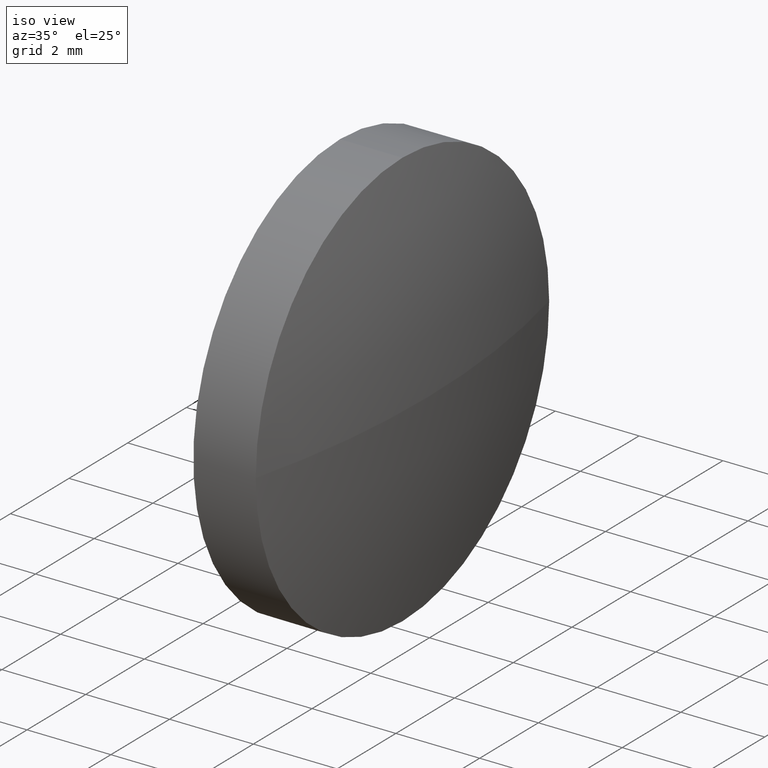
[diagram: clean part render]
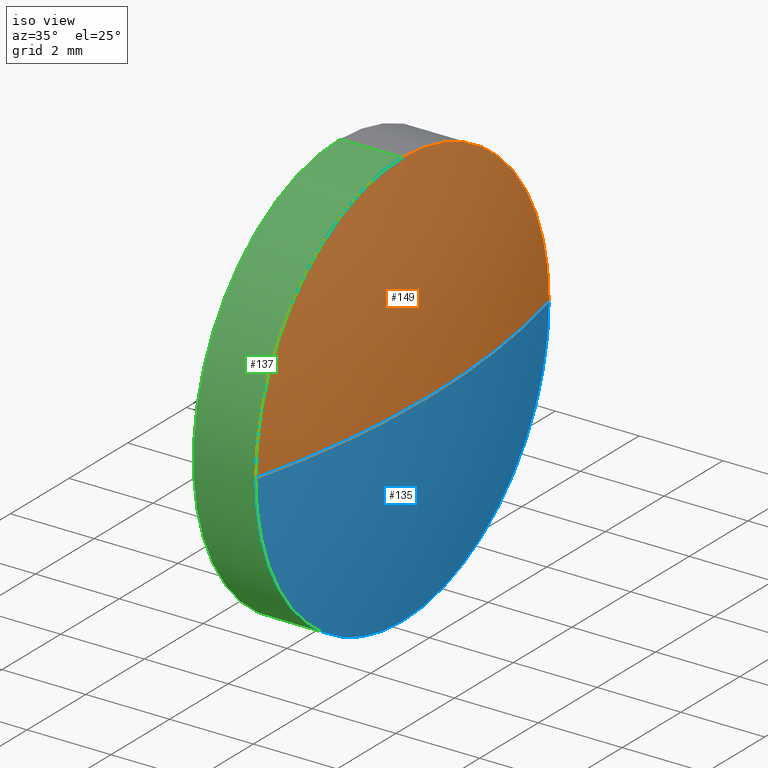
[diagram: same view with three faces highlighted in distinct colors, each labeled with its STEP entity id]
A machine part, iso view with three faces highlighted in distinct colors.
Their STEP definitions:

[orange] entity #149 — the highlighted spherical surface has radius 20.7968 mm.
#2 = DIRECTION ( 'NONE',  ( 0.0000000000000000000, 0.0000000000000000000, 1.000000000000000000 ) ) ;
#11 = EDGE_CURVE ( 'NONE', #13, #99, #126, .T. ) ;
#13 = VERTEX_POINT ( 'NONE', #107 ) ;
#17 = EDGE_CURVE ( 'NONE', #79, #99, #180, .T. ) ;
#19 = DIRECTION ( 'NONE',  ( 0.0000000000000000000, -1.000000000000000000, 0.0000000000000000000 ) ) ;
#20 = CARTESIAN_POINT ( 'NONE',  ( 583.2084363303545200, 21.94448567432968000, 0.0000000000000000000 ) ) ;
#29 = EDGE_CURVE ( 'NONE', #79, #35, #153, .T. ) ;
#31 = CIRCLE ( 'NONE', #144, 4.999999999999997300 ) ;
#34 = DIRECTION ( 'NONE',  ( -1.000000000000000000, -0.0000000000000000000, -0.0000000000000000000 ) ) ;
#35 = VERTEX_POINT ( 'NONE', #76 ) ;
#42 = AXIS2_PLACEMENT_3D ( 'NONE', #115, #68, #19 ) ;
#44 = ORIENTED_EDGE ( 'NONE', *, *, #17, .T. ) ;
#45 = DIRECTION ( 'NONE',  ( 0.0000000000000000000, -1.000000000000000000, -1.224646799147353200E-016 ) ) ;
#46 = CARTESIAN_POINT ( 'NONE',  ( 583.2084363303545200, 21.94448567432968000, 0.0000000000000000000 ) ) ;
#49 = DIRECTION ( 'NONE',  ( -1.000000000000000000, 0.0000000000000000000, 0.0000000000000000000 ) ) ;
#55 = ORIENTED_EDGE ( 'NONE', *, *, #11, .F. ) ;
#62 = DIRECTION ( 'NONE',  ( 0.0000000000000000000, -1.224646799147353200E-016, 1.000000000000000000 ) ) ;
#67 = CARTESIAN_POINT ( 'NONE',  ( 603.3952396090428500, 26.94448567432957400, 6.123233995736636100E-016 ) ) ;
#68 = DIRECTION ( 'NONE',  ( 0.0000000000000000000, 0.0000000000000000000, 1.000000000000000000 ) ) ;
#76 = CARTESIAN_POINT ( 'NONE',  ( 603.3952396090428500, 16.94448567432964800, 0.0000000000000000000 ) ) ;
#79 = VERTEX_POINT ( 'NONE', #81 ) ;
#81 = CARTESIAN_POINT ( 'NONE',  ( 604.0052396090428600, 21.94448567432968000, 0.0000000000000000000 ) ) ;
#84 = AXIS2_PLACEMENT_3D ( 'NONE', #20, #130, #49 ) ;
#89 = ORIENTED_EDGE ( 'NONE', *, *, #154, .F. ) ;
#99 = VERTEX_POINT ( 'NONE', #67 ) ;
#106 = EDGE_LOOP ( 'NONE', ( #119, #44, #55, #89 ) ) ;
#107 = CARTESIAN_POINT ( 'NONE',  ( 603.3952396090428500, 21.94448567432954200, 4.999999999999997300 ) ) ;
#111 = DIRECTION ( 'NONE',  ( 0.0000000000000000000, 0.0000000000000000000, 1.000000000000000000 ) ) ;
#115 = CARTESIAN_POINT ( 'NONE',  ( 583.2084363303545200, 21.94448567432968000, 0.0000000000000000000 ) ) ;
#117 = SPHERICAL_SURFACE ( 'NONE', #42, 20.79680327868836500 ) ;
#119 = ORIENTED_EDGE ( 'NONE', *, *, #29, .F. ) ;
#126 = CIRCLE ( 'NONE', #181, 4.999999999999997300 ) ;
#130 = DIRECTION ( 'NONE',  ( 0.0000000000000000000, 0.0000000000000000000, -1.000000000000000000 ) ) ;
#144 = AXIS2_PLACEMENT_3D ( 'NONE', #162, #163, #111 ) ;
#148 = CARTESIAN_POINT ( 'NONE',  ( 603.3952396090428500, 21.94448567432954200, 0.0000000000000000000 ) ) ;
#149 = ADVANCED_FACE ( 'NONE', ( #185 ), #117, .T. ) ;
#153 = CIRCLE ( 'NONE', #84, 20.79680327868838000 ) ;
#154 = EDGE_CURVE ( 'NONE', #35, #13, #31, .T. ) ;
#162 = CARTESIAN_POINT ( 'NONE',  ( 603.3952396090428500, 21.94448567432954200, 0.0000000000000000000 ) ) ;
#163 = DIRECTION ( 'NONE',  ( -1.000000000000000000, -0.0000000000000000000, -0.0000000000000000000 ) ) ;
#164 = AXIS2_PLACEMENT_3D ( 'NONE', #46, #62, #45 ) ;
#180 = CIRCLE ( 'NONE', #164, 20.79680327868836500 ) ;
#181 = AXIS2_PLACEMENT_3D ( 'NONE', #148, #34, #2 ) ;
#185 = FACE_OUTER_BOUND ( 'NONE', #106, .T. ) ;

[blue] entity #135 — the highlighted spherical surface has radius 20.7968 mm.
#4 = FACE_OUTER_BOUND ( 'NONE', #58, .T. ) ;
#5 = DIRECTION ( 'NONE',  ( -1.000000000000000000, -0.0000000000000000000, -0.0000000000000000000 ) ) ;
#12 = VERTEX_POINT ( 'NONE', #110 ) ;
#17 = EDGE_CURVE ( 'NONE', #79, #99, #180, .T. ) ;
#20 = CARTESIAN_POINT ( 'NONE',  ( 583.2084363303545200, 21.94448567432968000, 0.0000000000000000000 ) ) ;
#21 = DIRECTION ( 'NONE',  ( 0.0000000000000000000, 0.0000000000000000000, 1.000000000000000000 ) ) ;
#29 = EDGE_CURVE ( 'NONE', #79, #35, #153, .T. ) ;
#35 = VERTEX_POINT ( 'NONE', #76 ) ;
#40 = DIRECTION ( 'NONE',  ( 0.0000000000000000000, -1.000000000000000000, 0.0000000000000000000 ) ) ;
#45 = DIRECTION ( 'NONE',  ( 0.0000000000000000000, -1.000000000000000000, -1.224646799147353200E-016 ) ) ;
#46 = CARTESIAN_POINT ( 'NONE',  ( 583.2084363303545200, 21.94448567432968000, 0.0000000000000000000 ) ) ;
#49 = DIRECTION ( 'NONE',  ( -1.000000000000000000, 0.0000000000000000000, 0.0000000000000000000 ) ) ;
#58 = EDGE_LOOP ( 'NONE', ( #145, #127, #116, #129 ) ) ;
#62 = DIRECTION ( 'NONE',  ( 0.0000000000000000000, -1.224646799147353200E-016, 1.000000000000000000 ) ) ;
#64 = CARTESIAN_POINT ( 'NONE',  ( 583.2084363303545200, 21.94448567432968000, 0.0000000000000000000 ) ) ;
#67 = CARTESIAN_POINT ( 'NONE',  ( 603.3952396090428500, 26.94448567432957400, 6.123233995736636100E-016 ) ) ;
#76 = CARTESIAN_POINT ( 'NONE',  ( 603.3952396090428500, 16.94448567432964800, 0.0000000000000000000 ) ) ;
#79 = VERTEX_POINT ( 'NONE', #81 ) ;
#81 = CARTESIAN_POINT ( 'NONE',  ( 604.0052396090428600, 21.94448567432968000, 0.0000000000000000000 ) ) ;
#82 = CARTESIAN_POINT ( 'NONE',  ( 603.3952396090428500, 21.94448567432954200, 0.0000000000000000000 ) ) ;
#84 = AXIS2_PLACEMENT_3D ( 'NONE', #20, #130, #49 ) ;
#98 = DIRECTION ( 'NONE',  ( 0.0000000000000000000, 0.0000000000000000000, 1.000000000000000000 ) ) ;
#99 = VERTEX_POINT ( 'NONE', #67 ) ;
#100 = DIRECTION ( 'NONE',  ( -1.000000000000000000, -0.0000000000000000000, -0.0000000000000000000 ) ) ;
#101 = DIRECTION ( 'NONE',  ( 0.0000000000000000000, 0.0000000000000000000, 1.000000000000000000 ) ) ;
#102 = AXIS2_PLACEMENT_3D ( 'NONE', #82, #100, #98 ) ;
#110 = CARTESIAN_POINT ( 'NONE',  ( 603.3952396090428500, 21.94448567432954200, -4.999999999999997300 ) ) ;
#116 = ORIENTED_EDGE ( 'NONE', *, *, #171, .F. ) ;
#121 = AXIS2_PLACEMENT_3D ( 'NONE', #64, #101, #40 ) ;
#127 = ORIENTED_EDGE ( 'NONE', *, *, #29, .T. ) ;
#129 = ORIENTED_EDGE ( 'NONE', *, *, #167, .F. ) ;
#130 = DIRECTION ( 'NONE',  ( 0.0000000000000000000, 0.0000000000000000000, -1.000000000000000000 ) ) ;
#135 = ADVANCED_FACE ( 'NONE', ( #4 ), #165, .T. ) ;
#145 = ORIENTED_EDGE ( 'NONE', *, *, #17, .F. ) ;
#153 = CIRCLE ( 'NONE', #84, 20.79680327868838000 ) ;
#164 = AXIS2_PLACEMENT_3D ( 'NONE', #46, #62, #45 ) ;
#165 = SPHERICAL_SURFACE ( 'NONE', #121, 20.79680327868836500 ) ;
#166 = CIRCLE ( 'NONE', #102, 4.999999999999997300 ) ;
#167 = EDGE_CURVE ( 'NONE', #99, #12, #173, .T. ) ;
#171 = EDGE_CURVE ( 'NONE', #12, #35, #166, .T. ) ;
#173 = CIRCLE ( 'NONE', #184, 4.999999999999997300 ) ;
#175 = CARTESIAN_POINT ( 'NONE',  ( 603.3952396090428500, 21.94448567432954200, 0.0000000000000000000 ) ) ;
#180 = CIRCLE ( 'NONE', #164, 20.79680327868836500 ) ;
#184 = AXIS2_PLACEMENT_3D ( 'NONE', #175, #5, #21 ) ;

[green] entity #137 — the highlighted cylindrical surface (partial cylindrical patch) has radius 5 mm, axis along (-1, -0, -0).
#3 = CARTESIAN_POINT ( 'NONE',  ( 601.9052396090429500, 21.94448567432954200, 0.0000000000000000000 ) ) ;
#12 = VERTEX_POINT ( 'NONE', #110 ) ;
#13 = VERTEX_POINT ( 'NONE', #107 ) ;
#14 = EDGE_CURVE ( 'NONE', #13, #86, #65, .T. ) ;
#23 = FACE_OUTER_BOUND ( 'NONE', #155, .T. ) ;
#26 = CYLINDRICAL_SURFACE ( 'NONE', #75, 4.999999999999997300 ) ;
#31 = CIRCLE ( 'NONE', #144, 4.999999999999997300 ) ;
#32 = ORIENTED_EDGE ( 'NONE', *, *, #90, .F. ) ;
#35 = VERTEX_POINT ( 'NONE', #76 ) ;
#51 = VERTEX_POINT ( 'NONE', #158 ) ;
#54 = EDGE_CURVE ( 'NONE', #51, #86, #83, .T. ) ;
#63 = DIRECTION ( 'NONE',  ( -1.000000000000000000, -0.0000000000000000000, -0.0000000000000000000 ) ) ;
#65 = LINE ( 'NONE', #174, #147 ) ;
#74 = ORIENTED_EDGE ( 'NONE', *, *, #154, .T. ) ;
#75 = AXIS2_PLACEMENT_3D ( 'NONE', #150, #141, #142 ) ;
#76 = CARTESIAN_POINT ( 'NONE',  ( 603.3952396090428500, 16.94448567432964800, 0.0000000000000000000 ) ) ;
#82 = CARTESIAN_POINT ( 'NONE',  ( 603.3952396090428500, 21.94448567432954200, 0.0000000000000000000 ) ) ;
#83 = CIRCLE ( 'NONE', #128, 4.999999999999997300 ) ;
#86 = VERTEX_POINT ( 'NONE', #113 ) ;
#90 = EDGE_CURVE ( 'NONE', #12, #51, #125, .T. ) ;
#98 = DIRECTION ( 'NONE',  ( 0.0000000000000000000, 0.0000000000000000000, 1.000000000000000000 ) ) ;
#100 = DIRECTION ( 'NONE',  ( -1.000000000000000000, -0.0000000000000000000, -0.0000000000000000000 ) ) ;
#102 = AXIS2_PLACEMENT_3D ( 'NONE', #82, #100, #98 ) ;
#103 = ORIENTED_EDGE ( 'NONE', *, *, #54, .F. ) ;
#107 = CARTESIAN_POINT ( 'NONE',  ( 603.3952396090428500, 21.94448567432954200, 4.999999999999997300 ) ) ;
#110 = CARTESIAN_POINT ( 'NONE',  ( 603.3952396090428500, 21.94448567432954200, -4.999999999999997300 ) ) ;
#111 = DIRECTION ( 'NONE',  ( 0.0000000000000000000, 0.0000000000000000000, 1.000000000000000000 ) ) ;
#113 = CARTESIAN_POINT ( 'NONE',  ( 601.9052396090429500, 21.94448567432954200, 4.999999999999997300 ) ) ;
#123 = VECTOR ( 'NONE', #133, 1000.000000000000000 ) ;
#124 = ORIENTED_EDGE ( 'NONE', *, *, #14, .T. ) ;
#125 = LINE ( 'NONE', #160, #123 ) ;
#128 = AXIS2_PLACEMENT_3D ( 'NONE', #3, #161, #177 ) ;
#133 = DIRECTION ( 'NONE',  ( -1.000000000000000000, -0.0000000000000000000, -0.0000000000000000000 ) ) ;
#137 = ADVANCED_FACE ( 'NONE', ( #23 ), #26, .T. ) ;
#139 = ORIENTED_EDGE ( 'NONE', *, *, #171, .T. ) ;
#141 = DIRECTION ( 'NONE',  ( -1.000000000000000000, -0.0000000000000000000, -0.0000000000000000000 ) ) ;
#142 = DIRECTION ( 'NONE',  ( 0.0000000000000000000, 0.0000000000000000000, 1.000000000000000000 ) ) ;
#144 = AXIS2_PLACEMENT_3D ( 'NONE', #162, #163, #111 ) ;
#147 = VECTOR ( 'NONE', #63, 1000.000000000000000 ) ;
#150 = CARTESIAN_POINT ( 'NONE',  ( 601.1075673549775000, 21.94448567432954200, 0.0000000000000000000 ) ) ;
#154 = EDGE_CURVE ( 'NONE', #35, #13, #31, .T. ) ;
#155 = EDGE_LOOP ( 'NONE', ( #32, #139, #74, #124, #103 ) ) ;
#158 = CARTESIAN_POINT ( 'NONE',  ( 601.9052396090429500, 21.94448567432954200, -4.999999999999997300 ) ) ;
#160 = CARTESIAN_POINT ( 'NONE',  ( 601.1075673549775000, 21.94448567432954200, -4.999999999999997300 ) ) ;
#161 = DIRECTION ( 'NONE',  ( -1.000000000000000000, -0.0000000000000000000, -0.0000000000000000000 ) ) ;
#162 = CARTESIAN_POINT ( 'NONE',  ( 603.3952396090428500, 21.94448567432954200, 0.0000000000000000000 ) ) ;
#163 = DIRECTION ( 'NONE',  ( -1.000000000000000000, -0.0000000000000000000, -0.0000000000000000000 ) ) ;
#166 = CIRCLE ( 'NONE', #102, 4.999999999999997300 ) ;
#171 = EDGE_CURVE ( 'NONE', #12, #35, #166, .T. ) ;
#174 = CARTESIAN_POINT ( 'NONE',  ( 601.1075673549775000, 21.94448567432954200, 4.999999999999997300 ) ) ;
#177 = DIRECTION ( 'NONE',  ( 0.0000000000000000000, 0.0000000000000000000, 1.000000000000000000 ) ) ;